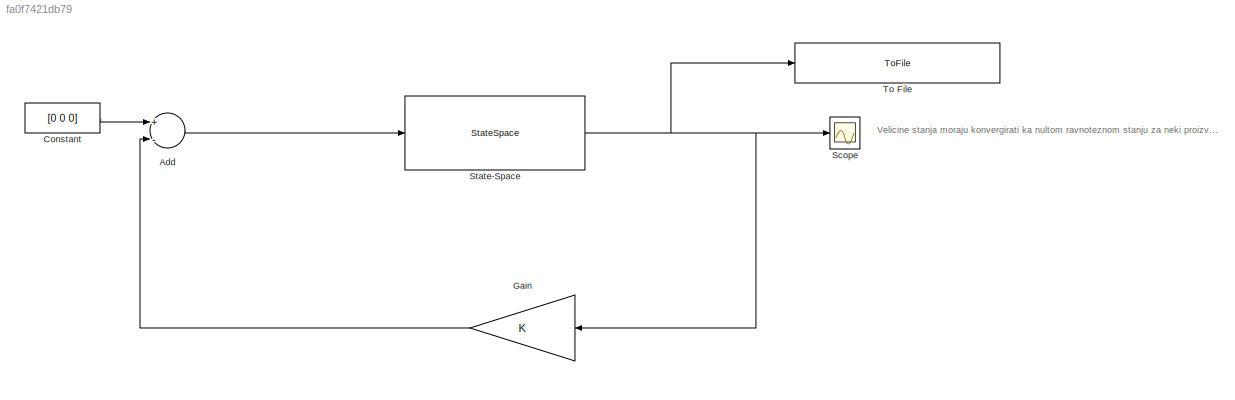
MODEL slx_fa0f7421db79
KIND model
CONFIG AbsTol = auto
CONFIG EnableMultiTasking = on
CONFIG FixedStep = 0.01
CONFIG MaxStep = auto
CONFIG MinStep = auto
CONFIG RelTol = 1e-3
CONFIG SampleTimeConstraint = Unconstrained
CONFIG Solver = ode4
CONFIG SolverName = ode4
CONFIG StartTime = 0.0
CONFIG StopTime = 500
BLOCK [Sum] Add
  InputSameDT = off
  Inputs = +-
  OutDataTypeStr = Inherit: Inherit via internal rule
  Ports = [2, 1]
  SaturateOnIntegerOverflow = off
BLOCK [Constant] Constant
  Value = [0 0 0]
BLOCK [Gain] Gain
  Gain = K
  Multiplication = Matrix(K*u)
  OutDataTypeStr = Inherit: Inherit via internal rule
  ParamDataTypeStr = Inherit: Inherit via internal rule
  SaturateOnIntegerOverflow = off
BLOCK [Scope] Scope
  Floating = off
  NumInputPorts = 1
  Ports = [1]
  ScopeSpecificationString = Simulink.scopes.TimeScopeBlockCfg('CurrentConfiguration', extmgr.ConfigurationSet(extmgr.Configuration('Core','General UI',true),extmgr.Configuration('Core','Source UI',true),extmgr.Configuration('Sources','WiredSimulink',true,'DataLoggingSaveFormat','Array','DataLoggingDecimation','1','DataLoggingDecimateData',true),extmgr.Configuration('Visuals','Time Domain',true,'SerializedDisplays',{struct('M...<+1658ch>
BLOCK [StateSpace] State-Space
  A = Ak
  B = Bk
  C = Ck
  D = Dk
  InitialCondition = [2 3 4]
  Ports = [1, 1]
BLOCK [ToFile] To File
  Filename = kalmanov_regulator.mat
  MatrixName = k
  Ports = [1]
ANNOTATION (root): Velicine stanja moraju konvergirati ka nultom ravnoteznom stanju za neki proizvoljan vektor pocetnih uslova koje se razlikuje od nule. Na ulazu su nulte vrednosti jer ako hocemo da nam resenja konvergiraju ka nultom ravnoteznom stanju to nam je onda zeljeno stanje
LINE Add:1 -> State-Space:1
LINE Constant:1 -> Add:1
LINE Gain:1 -> Add:2
NET State-Space:1 -> Gain:1, Scope:1, To File:1
note: NET lines group one-source signal fan-out (src -> all destinations, sorted); 1:1 wires keep LINE
